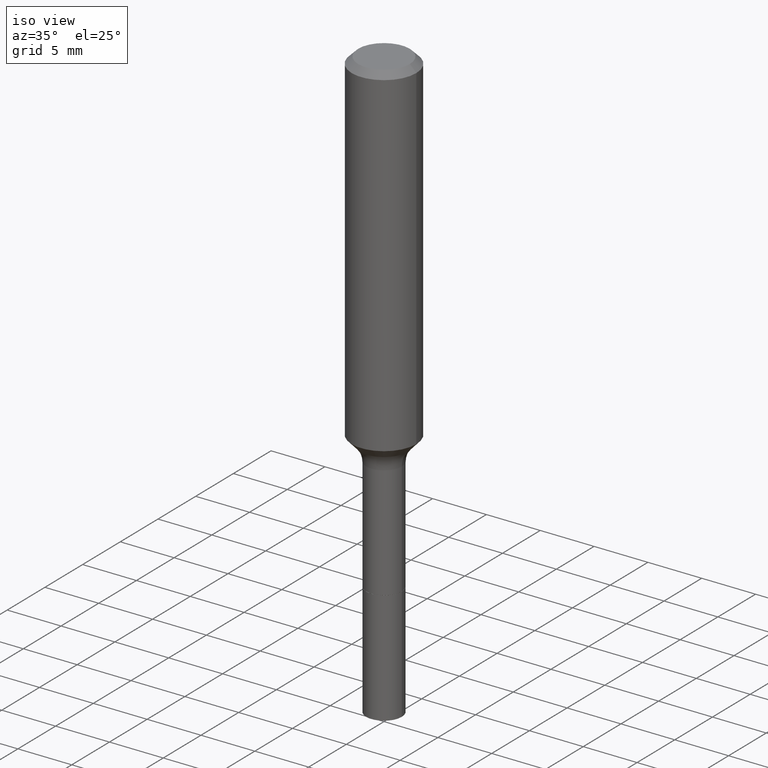
[diagram: clean part render]
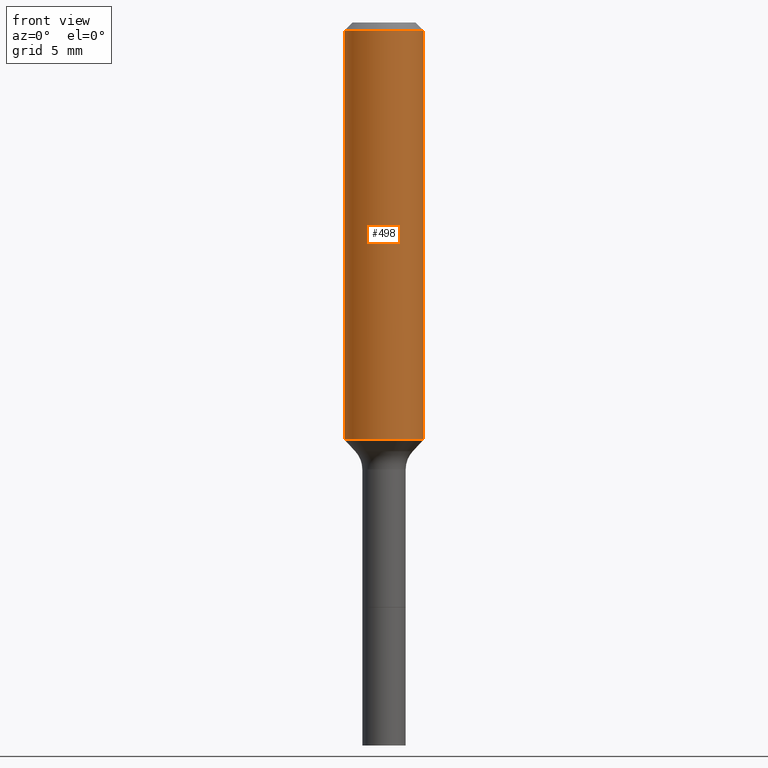
[diagram: tour spotlight — one face highlighted and labeled with its STEP entity id]
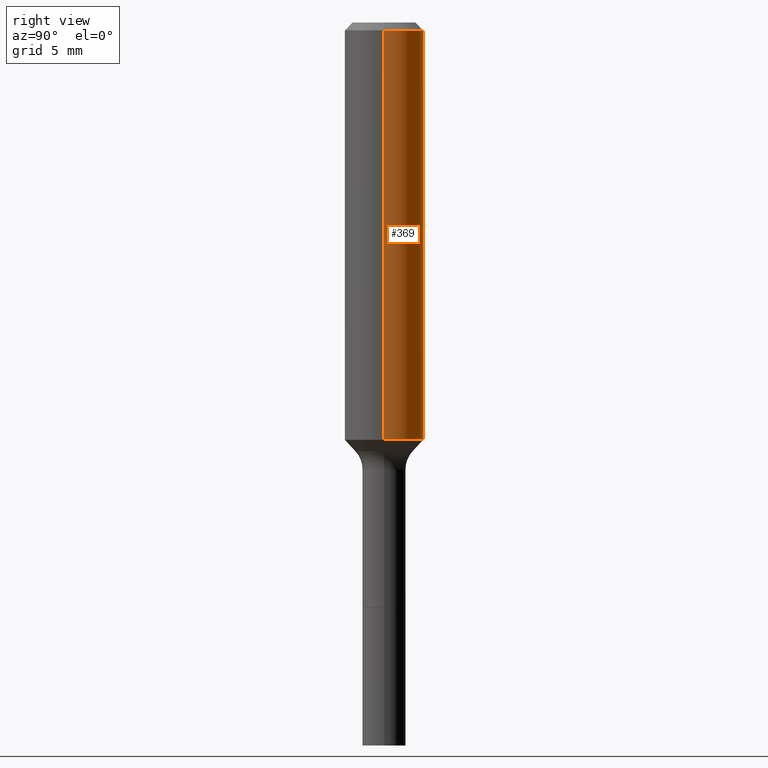
[diagram: tour spotlight — one face highlighted and labeled with its STEP entity id]
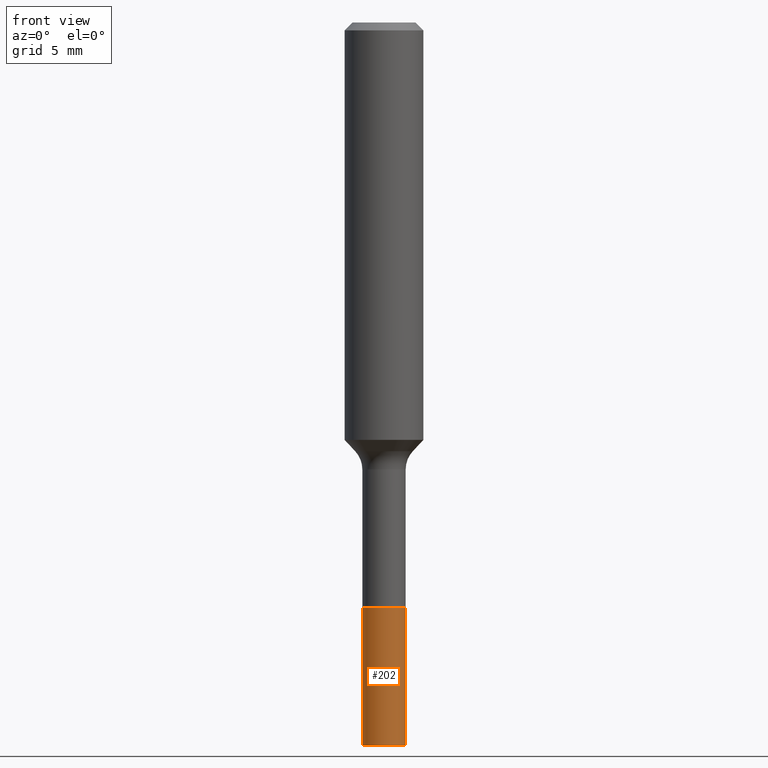
[diagram: tour spotlight — one face highlighted and labeled with its STEP entity id]
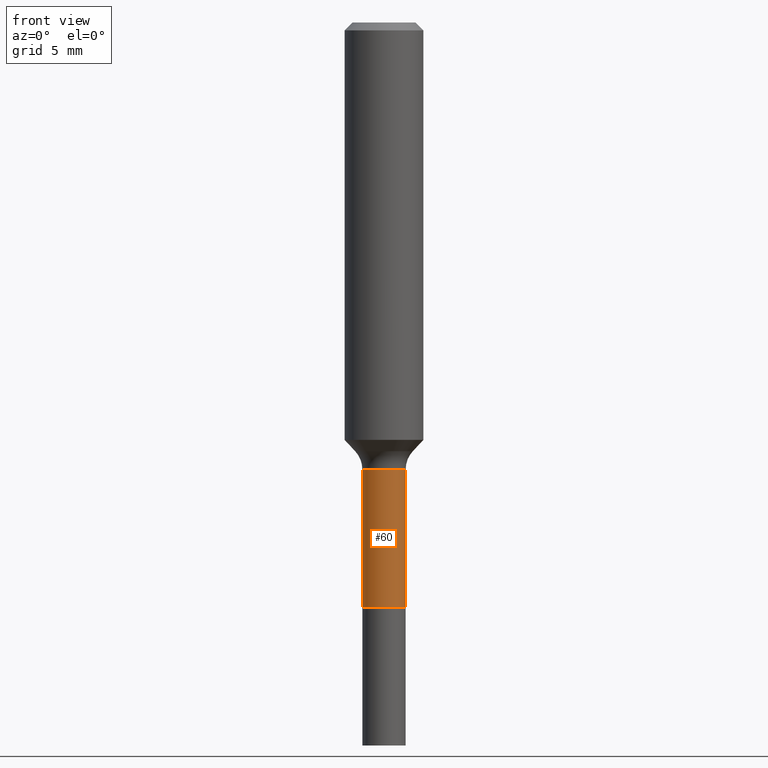
[diagram: tour spotlight — one face highlighted and labeled with its STEP entity id]
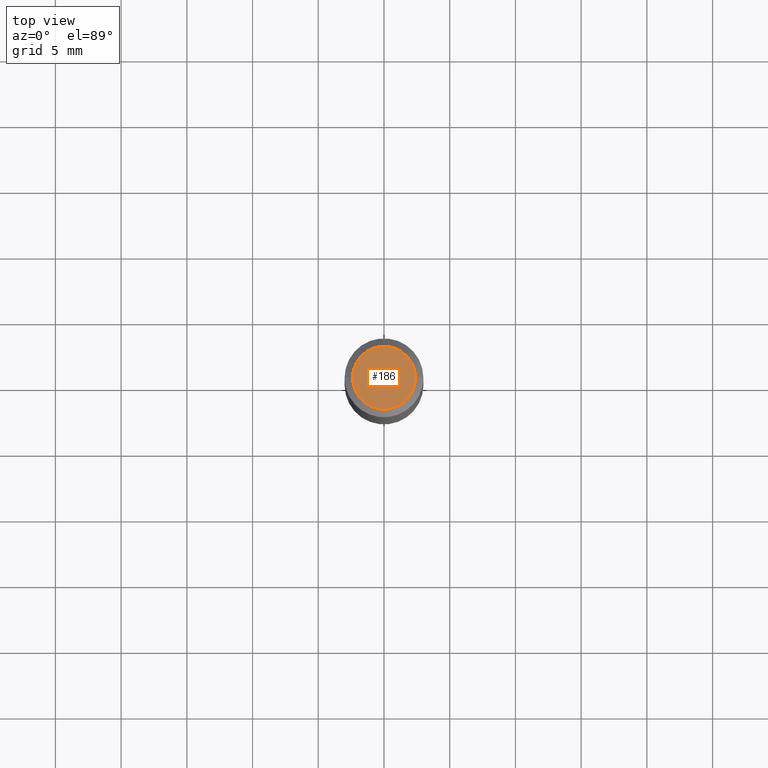
[diagram: tour spotlight — one face highlighted and labeled with its STEP entity id]
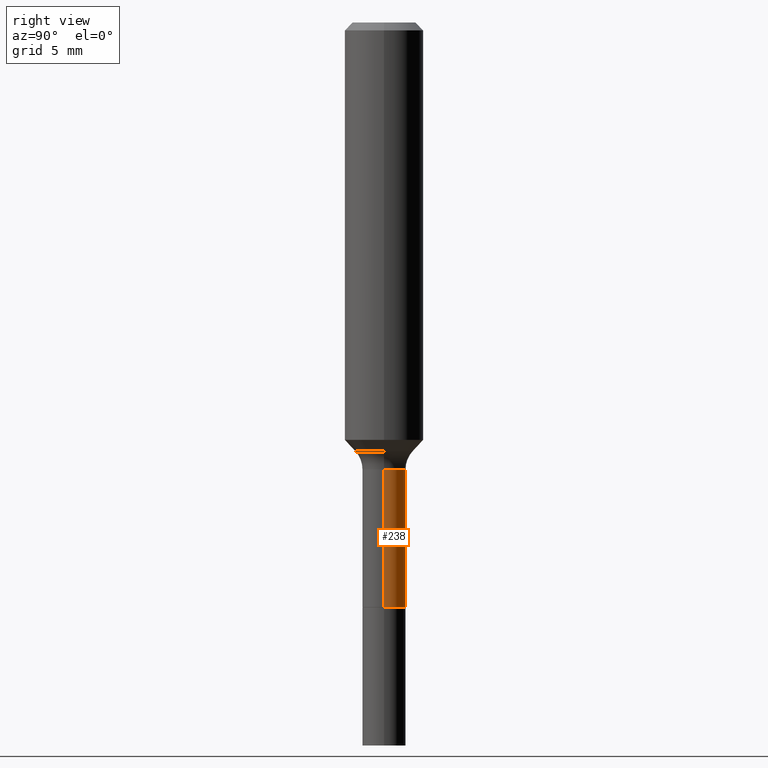
[diagram: tour spotlight — one face highlighted and labeled with its STEP entity id]
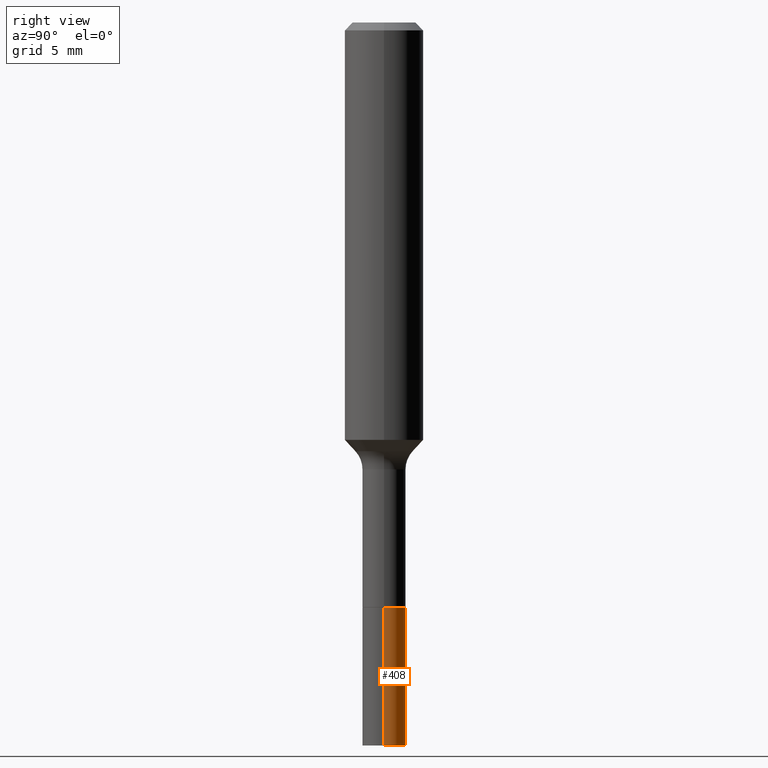
[diagram: tour spotlight — one face highlighted and labeled with its STEP entity id]
A machine part: a face-by-face anatomy tour. The part has 18 B-rep faces; the first image is the clean iso view, then the 7 largest visible faces are spotlighted one at a time (largest first), each with its STEP entity span.

Face 1 — front view, entity #498. In plain terms, the highlighted cylindrical surface (partial cylindrical patch) has radius 2.9997 mm, axis along (-0, 0, 1).
Definition (entity closure, byte-faithful):
#2 = CIRCLE ( 'NONE', #509, 0.1180999999999999966 ) ;
#3 = DIRECTION ( 'NONE',  ( -2.445468806185136877E-29, 3.491481338843145188E-15, 1.000000000000000000 ) ) ;
#24 = ORIENTED_EDGE ( 'NONE', *, *, #147, .F. ) ;
#59 = ORIENTED_EDGE ( 'NONE', *, *, #286, .F. ) ;
#69 = DIRECTION ( 'NONE',  ( 1.000000000000000000, -6.982962677686264344E-15, 0.000000000000000000 ) ) ;
#77 = DIRECTION ( 'NONE',  ( -2.445468806185136597E-29, 3.491481338843145583E-15, 1.000000000000000000 ) ) ;
#117 = CARTESIAN_POINT ( 'NONE',  ( 5.776197320209328408E-31, -8.246878922347560526E-17, -0.02362000000000014435 ) ) ;
#136 = EDGE_CURVE ( 'NONE', #219, #164, #465, .T. ) ;
#146 = DIRECTION ( 'NONE',  ( 1.000000000000000000, -6.982962677686266711E-15, 4.876176775795936353E-29 ) ) ;
#147 = EDGE_CURVE ( 'NONE', #387, #411, #2, .T. ) ;
#164 = VERTEX_POINT ( 'NONE', #333 ) ;
#185 = EDGE_LOOP ( 'NONE', ( #59, #188, #463, #24 ) ) ;
#188 = ORIENTED_EDGE ( 'NONE', *, *, #136, .T. ) ;
#191 = VECTOR ( 'NONE', #272, 39.37007874015748143 ) ;
#195 = CARTESIAN_POINT ( 'NONE',  ( 3.056568876978149213E-29, -4.363970281635246080E-15, -1.249890765012992233 ) ) ;
#196 = CARTESIAN_POINT ( 'NONE',  ( -0.1181000000000000660, 8.391509709326787887E-16, -5.809262341591047287E-30 ) ) ;
#218 = CARTESIAN_POINT ( 'NONE',  ( 0.1180999999999999966, -9.071566814582237199E-16, -0.02362000000000014435 ) ) ;
#219 = VERTEX_POINT ( 'NONE', #343 ) ;
#223 = DIRECTION ( 'NONE',  ( 1.000000000000000000, -6.982962677686266711E-15, 0.000000000000000000 ) ) ;
#248 = AXIS2_PLACEMENT_3D ( 'NONE', #320, #334, #146 ) ;
#257 = FACE_OUTER_BOUND ( 'NONE', #185, .T. ) ;
#272 = DIRECTION ( 'NONE',  ( -2.445468806185136877E-29, 3.491481338843145188E-15, 1.000000000000000000 ) ) ;
#274 = LINE ( 'NONE', #196, #191 ) ;
#280 = LINE ( 'NONE', #346, #487 ) ;
#286 = EDGE_CURVE ( 'NONE', #219, #387, #274, .T. ) ;
#301 = EDGE_CURVE ( 'NONE', #164, #411, #280, .T. ) ;
#320 = CARTESIAN_POINT ( 'NONE',  ( 0.000000000000000000, 0.000000000000000000, 0.000000000000000000 ) ) ;
#333 = CARTESIAN_POINT ( 'NONE',  ( 0.1181000000000001493, -5.188658173869994343E-15, -1.249890765012992233 ) ) ;
#334 = DIRECTION ( 'NONE',  ( -2.445468806185136597E-29, 3.491481338843145583E-15, 1.000000000000000000 ) ) ;
#343 = CARTESIAN_POINT ( 'NONE',  ( -0.1181000000000001493, -3.524819310702566700E-15, -1.249890765012992233 ) ) ;
#346 = CARTESIAN_POINT ( 'NONE',  ( 0.1181000000000000660, -8.246878922347485584E-16, 5.758764772215003944E-30 ) ) ;
#358 = AXIS2_PLACEMENT_3D ( 'NONE', #195, #429, #69 ) ;
#379 = CYLINDRICAL_SURFACE ( 'NONE', #248, 0.1181000000000000660 ) ;
#387 = VERTEX_POINT ( 'NONE', #478 ) ;
#411 = VERTEX_POINT ( 'NONE', #218 ) ;
#429 = DIRECTION ( 'NONE',  ( -2.445468806185136597E-29, 3.491481338843145583E-15, 1.000000000000000000 ) ) ;
#463 = ORIENTED_EDGE ( 'NONE', *, *, #301, .T. ) ;
#465 = CIRCLE ( 'NONE', #358, 0.1181000000000001493 ) ;
#478 = CARTESIAN_POINT ( 'NONE',  ( -0.1180999999999999966, -1.384068564496681388E-15, -0.02362000000000014435 ) ) ;
#487 = VECTOR ( 'NONE', #3, 39.37007874015748143 ) ;
#498 = ADVANCED_FACE ( 'NONE', ( #257 ), #379, .T. ) ;
#509 = AXIS2_PLACEMENT_3D ( 'NONE', #117, #77, #223 ) ;

Face 2 — right view, entity #369. In plain terms, the highlighted cylindrical surface (partial cylindrical patch) has radius 2.9997 mm, axis along (-0, 0, 1).
Definition (entity closure, byte-faithful):
#3 = DIRECTION ( 'NONE',  ( -2.445468806185136877E-29, 3.491481338843145188E-15, 1.000000000000000000 ) ) ;
#9 = CARTESIAN_POINT ( 'NONE',  ( 5.776197320209328408E-31, -8.246878922347560526E-17, -0.02362000000000014435 ) ) ;
#11 = AXIS2_PLACEMENT_3D ( 'NONE', #407, #230, #107 ) ;
#78 = EDGE_CURVE ( 'NONE', #411, #387, #231, .T. ) ;
#106 = ORIENTED_EDGE ( 'NONE', *, *, #116, .T. ) ;
#107 = DIRECTION ( 'NONE',  ( 1.000000000000000000, -6.982962677686264344E-15, 0.000000000000000000 ) ) ;
#116 = EDGE_CURVE ( 'NONE', #164, #219, #284, .T. ) ;
#123 = AXIS2_PLACEMENT_3D ( 'NONE', #9, #394, #169 ) ;
#135 = FACE_OUTER_BOUND ( 'NONE', #517, .T. ) ;
#164 = VERTEX_POINT ( 'NONE', #333 ) ;
#169 = DIRECTION ( 'NONE',  ( 1.000000000000000000, -6.982962677686266711E-15, 0.000000000000000000 ) ) ;
#191 = VECTOR ( 'NONE', #272, 39.37007874015748143 ) ;
#196 = CARTESIAN_POINT ( 'NONE',  ( -0.1181000000000000660, 8.391509709326787887E-16, -5.809262341591047287E-30 ) ) ;
#197 = ORIENTED_EDGE ( 'NONE', *, *, #286, .T. ) ;
#218 = CARTESIAN_POINT ( 'NONE',  ( 0.1180999999999999966, -9.071566814582237199E-16, -0.02362000000000014435 ) ) ;
#219 = VERTEX_POINT ( 'NONE', #343 ) ;
#230 = DIRECTION ( 'NONE',  ( -2.445468806185136597E-29, 3.491481338843145583E-15, 1.000000000000000000 ) ) ;
#231 = CIRCLE ( 'NONE', #123, 0.1180999999999999966 ) ;
#240 = ORIENTED_EDGE ( 'NONE', *, *, #78, .F. ) ;
#243 = CYLINDRICAL_SURFACE ( 'NONE', #510, 0.1181000000000000660 ) ;
#272 = DIRECTION ( 'NONE',  ( -2.445468806185136877E-29, 3.491481338843145188E-15, 1.000000000000000000 ) ) ;
#274 = LINE ( 'NONE', #196, #191 ) ;
#280 = LINE ( 'NONE', #346, #487 ) ;
#283 = DIRECTION ( 'NONE',  ( 1.000000000000000000, -6.982962677686266711E-15, 4.876176775795936353E-29 ) ) ;
#284 = CIRCLE ( 'NONE', #11, 0.1181000000000001493 ) ;
#286 = EDGE_CURVE ( 'NONE', #219, #387, #274, .T. ) ;
#301 = EDGE_CURVE ( 'NONE', #164, #411, #280, .T. ) ;
#318 = CARTESIAN_POINT ( 'NONE',  ( 0.000000000000000000, 0.000000000000000000, 0.000000000000000000 ) ) ;
#333 = CARTESIAN_POINT ( 'NONE',  ( 0.1181000000000001493, -5.188658173869994343E-15, -1.249890765012992233 ) ) ;
#343 = CARTESIAN_POINT ( 'NONE',  ( -0.1181000000000001493, -3.524819310702566700E-15, -1.249890765012992233 ) ) ;
#346 = CARTESIAN_POINT ( 'NONE',  ( 0.1181000000000000660, -8.246878922347485584E-16, 5.758764772215003944E-30 ) ) ;
#369 = ADVANCED_FACE ( 'NONE', ( #135 ), #243, .T. ) ;
#387 = VERTEX_POINT ( 'NONE', #478 ) ;
#394 = DIRECTION ( 'NONE',  ( -2.445468806185136597E-29, 3.491481338843145583E-15, 1.000000000000000000 ) ) ;
#407 = CARTESIAN_POINT ( 'NONE',  ( 3.056568876978149213E-29, -4.363970281635246080E-15, -1.249890765012992233 ) ) ;
#411 = VERTEX_POINT ( 'NONE', #218 ) ;
#467 = ORIENTED_EDGE ( 'NONE', *, *, #301, .F. ) ;
#478 = CARTESIAN_POINT ( 'NONE',  ( -0.1180999999999999966, -1.384068564496681388E-15, -0.02362000000000014435 ) ) ;
#487 = VECTOR ( 'NONE', #3, 39.37007874015748143 ) ;
#490 = DIRECTION ( 'NONE',  ( -2.445468806185136597E-29, 3.491481338843145583E-15, 1.000000000000000000 ) ) ;
#510 = AXIS2_PLACEMENT_3D ( 'NONE', #318, #490, #283 ) ;
#517 = EDGE_LOOP ( 'NONE', ( #106, #197, #240, #467 ) ) ;

Face 3 — front view, entity #202. In plain terms, the highlighted cylindrical surface (edge-blend (fillet) strip) has radius 1.6497 mm, axis along (-0, 0, 1).
Definition (entity closure, byte-faithful):
#8 = DIRECTION ( 'NONE',  ( 1.000000000000000000, -6.982962677686268288E-15, 0.000000000000000000 ) ) ;
#47 = CARTESIAN_POINT ( 'NONE',  ( -0.06495000000000013263, -6.376219547114229449E-15, -2.165399999999999991 ) ) ;
#50 = EDGE_CURVE ( 'NONE', #325, #131, #134, .T. ) ;
#52 = DIRECTION ( 'NONE',  ( -2.445468806185136597E-29, 3.491481338843145583E-15, 1.000000000000000000 ) ) ;
#84 = CARTESIAN_POINT ( 'NONE',  ( 0.06495000000000006324, -6.568523842765608074E-15, -1.751399999999999846 ) ) ;
#87 = AXIS2_PLACEMENT_3D ( 'NONE', #111, #119, #262 ) ;
#95 = DIRECTION ( 'NONE',  ( -2.445468806185136597E-29, 3.491481338843145583E-15, 1.000000000000000000 ) ) ;
#111 = CARTESIAN_POINT ( 'NONE',  ( 4.282994067152647543E-29, -6.114980416849884881E-15, -1.751399999999999846 ) ) ;
#119 = DIRECTION ( 'NONE',  ( -2.445468806185136597E-29, 3.491481338843145583E-15, 1.000000000000000000 ) ) ;
#124 = VECTOR ( 'NONE', #393, 39.37007874015748143 ) ;
#129 = CARTESIAN_POINT ( 'NONE',  ( 4.282994067152647543E-29, -6.114980416849884881E-15, -1.751399999999999846 ) ) ;
#131 = VERTEX_POINT ( 'NONE', #156 ) ;
#133 = CARTESIAN_POINT ( 'NONE',  ( 0.06494999999999999385, -6.568523842765608074E-15, -1.751399999999999846 ) ) ;
#134 = LINE ( 'NONE', #392, #175 ) ;
#138 = AXIS2_PLACEMENT_3D ( 'NONE', #129, #52, #8 ) ;
#148 = EDGE_LOOP ( 'NONE', ( #401, #291, #297, #258 ) ) ;
#151 = CIRCLE ( 'NONE', #376, 0.06495000000000013263 ) ;
#156 = CARTESIAN_POINT ( 'NONE',  ( -0.06494999999999999385, -6.376219547114230237E-15, -1.751399999999999846 ) ) ;
#175 = VECTOR ( 'NONE', #205, 39.37007874015748143 ) ;
#187 = CARTESIAN_POINT ( 'NONE',  ( 5.295418152913294345E-29, -7.560453691130947423E-15, -2.165399999999999991 ) ) ;
#202 = ADVANCED_FACE ( 'NONE', ( #473 ), #337, .T. ) ;
#205 = DIRECTION ( 'NONE',  ( -2.445468806185136877E-29, 3.491481338843145188E-15, 1.000000000000000000 ) ) ;
#258 = ORIENTED_EDGE ( 'NONE', *, *, #338, .F. ) ;
#262 = DIRECTION ( 'NONE',  ( 1.000000000000000000, -6.982962677686261189E-15, 0.000000000000000000 ) ) ;
#265 = VERTEX_POINT ( 'NONE', #349 ) ;
#291 = ORIENTED_EDGE ( 'NONE', *, *, #472, .T. ) ;
#297 = ORIENTED_EDGE ( 'NONE', *, *, #390, .T. ) ;
#300 = VERTEX_POINT ( 'NONE', #133 ) ;
#316 = CIRCLE ( 'NONE', #138, 0.06494999999999999385 ) ;
#325 = VERTEX_POINT ( 'NONE', #47 ) ;
#337 = CYLINDRICAL_SURFACE ( 'NONE', #87, 0.06495000000000006324 ) ;
#338 = EDGE_CURVE ( 'NONE', #131, #300, #316, .T. ) ;
#349 = CARTESIAN_POINT ( 'NONE',  ( 0.06495000000000013263, -8.013997117046670616E-15, -2.165399999999999991 ) ) ;
#365 = DIRECTION ( 'NONE',  ( 1.000000000000000000, -6.982962677686269077E-15, 0.000000000000000000 ) ) ;
#376 = AXIS2_PLACEMENT_3D ( 'NONE', #187, #95, #365 ) ;
#390 = EDGE_CURVE ( 'NONE', #265, #300, #436, .T. ) ;
#392 = CARTESIAN_POINT ( 'NONE',  ( -0.06495000000000006324, -5.653482909973699361E-15, -1.751399999999999846 ) ) ;
#393 = DIRECTION ( 'NONE',  ( -2.445468806185136877E-29, 3.491481338843145188E-15, 1.000000000000000000 ) ) ;
#401 = ORIENTED_EDGE ( 'NONE', *, *, #50, .F. ) ;
#436 = LINE ( 'NONE', #84, #124 ) ;
#472 = EDGE_CURVE ( 'NONE', #325, #265, #151, .T. ) ;
#473 = FACE_OUTER_BOUND ( 'NONE', #148, .T. ) ;

Face 4 — front view, entity #60. In plain terms, the highlighted cylindrical surface (edge-blend (fillet) strip) has radius 1.6497 mm, axis along (-0, 0, 1).
Definition (entity closure, byte-faithful):
#30 = EDGE_LOOP ( 'NONE', ( #375, #471, #293, #268 ) ) ;
#36 = VECTOR ( 'NONE', #385, 39.37007874015748143 ) ;
#58 = CARTESIAN_POINT ( 'NONE',  ( -0.06494999999999999385, -4.931619143167880420E-15, -1.750899999999999901 ) ) ;
#60 = ADVANCED_FACE ( 'NONE', ( #275 ), #404, .T. ) ;
#80 = CIRCLE ( 'NONE', #502, 0.06494999999999999385 ) ;
#82 = DIRECTION ( 'NONE',  ( -2.445468806185136597E-29, 3.491481338843145583E-15, 1.000000000000000000 ) ) ;
#98 = DIRECTION ( 'NONE',  ( 1.000000000000000000, -6.982962677686268288E-15, 0.000000000000000000 ) ) ;
#113 = AXIS2_PLACEMENT_3D ( 'NONE', #360, #82, #356 ) ;
#137 = CARTESIAN_POINT ( 'NONE',  ( 4.281771332749555302E-29, -6.113234676180463377E-15, -1.750899999999999901 ) ) ;
#144 = VERTEX_POINT ( 'NONE', #470 ) ;
#149 = CARTESIAN_POINT ( 'NONE',  ( 0.06494999999999996609, -4.535434259157227002E-16, 3.167076815879458313E-30 ) ) ;
#167 = EDGE_CURVE ( 'NONE', #339, #144, #207, .T. ) ;
#189 = LINE ( 'NONE', #149, #36 ) ;
#206 = CARTESIAN_POINT ( 'NONE',  ( -0.06494999999999993834, -4.931619143167880420E-15, -1.338399999999999812 ) ) ;
#207 = CIRCLE ( 'NONE', #239, 0.06494999999999993834 ) ;
#210 = CARTESIAN_POINT ( 'NONE',  ( 0.06494999999999999385, -6.566778102096186571E-15, -1.750899999999999901 ) ) ;
#211 = EDGE_CURVE ( 'NONE', #506, #144, #189, .T. ) ;
#239 = AXIS2_PLACEMENT_3D ( 'NONE', #344, #434, #304 ) ;
#259 = LINE ( 'NONE', #418, #452 ) ;
#268 = ORIENTED_EDGE ( 'NONE', *, *, #167, .F. ) ;
#275 = FACE_OUTER_BOUND ( 'NONE', #30, .T. ) ;
#293 = ORIENTED_EDGE ( 'NONE', *, *, #211, .T. ) ;
#304 = DIRECTION ( 'NONE',  ( 1.000000000000000000, -6.982962677686274599E-15, 0.000000000000000000 ) ) ;
#339 = VERTEX_POINT ( 'NONE', #206 ) ;
#344 = CARTESIAN_POINT ( 'NONE',  ( 3.273015450198186344E-29, -4.672998623907665346E-15, -1.338399999999999812 ) ) ;
#356 = DIRECTION ( 'NONE',  ( 1.000000000000000000, -6.982962677686265133E-15, 4.876176775795935232E-29 ) ) ;
#360 = CARTESIAN_POINT ( 'NONE',  ( 0.000000000000000000, 0.000000000000000000, 0.000000000000000000 ) ) ;
#375 = ORIENTED_EDGE ( 'NONE', *, *, #442, .F. ) ;
#385 = DIRECTION ( 'NONE',  ( -2.445468806185136877E-29, 3.491481338843145188E-15, 1.000000000000000000 ) ) ;
#400 = EDGE_CURVE ( 'NONE', #444, #506, #80, .T. ) ;
#404 = CYLINDRICAL_SURFACE ( 'NONE', #113, 0.06494999999999996609 ) ;
#410 = DIRECTION ( 'NONE',  ( -2.445468806185136877E-29, 3.491481338843145188E-15, 1.000000000000000000 ) ) ;
#418 = CARTESIAN_POINT ( 'NONE',  ( -0.06494999999999996609, 4.614975068761848298E-16, -3.194848341120559503E-30 ) ) ;
#420 = DIRECTION ( 'NONE',  ( -2.445468806185136597E-29, 3.491481338843145583E-15, 1.000000000000000000 ) ) ;
#434 = DIRECTION ( 'NONE',  ( -2.445468806185136597E-29, 3.491481338843145583E-15, 1.000000000000000000 ) ) ;
#442 = EDGE_CURVE ( 'NONE', #444, #339, #259, .T. ) ;
#444 = VERTEX_POINT ( 'NONE', #58 ) ;
#452 = VECTOR ( 'NONE', #410, 39.37007874015748143 ) ;
#470 = CARTESIAN_POINT ( 'NONE',  ( 0.06494999999999993834, -5.126542049823388540E-15, -1.338399999999999812 ) ) ;
#471 = ORIENTED_EDGE ( 'NONE', *, *, #400, .T. ) ;
#502 = AXIS2_PLACEMENT_3D ( 'NONE', #137, #420, #98 ) ;
#506 = VERTEX_POINT ( 'NONE', #210 ) ;

Face 5 — top view, entity #186. In plain terms, the highlighted planar face has unit normal (0, -0, -1).
Definition (entity closure, byte-faithful):
#35 = FACE_OUTER_BOUND ( 'NONE', #81, .T. ) ;
#41 = DIRECTION ( 'NONE',  ( -1.000000000000000000, 6.982962677686265922E-15, -4.876176775795935793E-29 ) ) ;
#53 = ORIENTED_EDGE ( 'NONE', *, *, #220, .T. ) ;
#62 = CIRCLE ( 'NONE', #451, 0.09447999999999998066 ) ;
#68 = CARTESIAN_POINT ( 'NONE',  ( 0.09447999999999998066, -7.704367267948738690E-16, -3.085620075131172158E-17 ) ) ;
#81 = EDGE_LOOP ( 'NONE', ( #53, #125 ) ) ;
#121 = PLANE ( 'NONE',  #255 ) ;
#125 = ORIENTED_EDGE ( 'NONE', *, *, #266, .T. ) ;
#168 = CARTESIAN_POINT ( 'NONE',  ( 7.545787641473140628E-46, -1.077338491108201769E-31, -3.085620075131671975E-17 ) ) ;
#186 = ADVANCED_FACE ( 'NONE', ( #35 ), #121, .F. ) ;
#220 = EDGE_CURVE ( 'NONE', #474, #227, #366, .T. ) ;
#224 = CARTESIAN_POINT ( 'NONE',  ( -0.09447999999999998066, 7.009847083995354710E-16, -3.085620075132147757E-17 ) ) ;
#227 = VERTEX_POINT ( 'NONE', #68 ) ;
#255 = AXIS2_PLACEMENT_3D ( 'NONE', #295, #514, #41 ) ;
#266 = EDGE_CURVE ( 'NONE', #227, #474, #62, .T. ) ;
#269 = AXIS2_PLACEMENT_3D ( 'NONE', #469, #329, #516 ) ;
#295 = CARTESIAN_POINT ( 'NONE',  ( 3.772893820736570314E-46, -5.386692455541008845E-32, -1.542810037565835988E-17 ) ) ;
#311 = DIRECTION ( 'NONE',  ( -2.445468806185136597E-29, 3.491481338843145583E-15, 1.000000000000000000 ) ) ;
#329 = DIRECTION ( 'NONE',  ( -2.445468806185136597E-29, 3.491481338843145583E-15, 1.000000000000000000 ) ) ;
#366 = CIRCLE ( 'NONE', #269, 0.09447999999999998066 ) ;
#451 = AXIS2_PLACEMENT_3D ( 'NONE', #168, #311, #485 ) ;
#469 = CARTESIAN_POINT ( 'NONE',  ( 7.545787641473140628E-46, -1.077338491108201769E-31, -3.085620075131671975E-17 ) ) ;
#474 = VERTEX_POINT ( 'NONE', #224 ) ;
#485 = DIRECTION ( 'NONE',  ( 1.000000000000000000, -6.982962677686267499E-15, 4.875432709231658792E-29 ) ) ;
#514 = DIRECTION ( 'NONE',  ( 2.438088387897960049E-29, -3.491481338843145188E-15, -1.000000000000000000 ) ) ;
#516 = DIRECTION ( 'NONE',  ( 1.000000000000000000, -6.982962677686267499E-15, 4.875432709231658792E-29 ) ) ;

Face 6 — right view, entity #238. In plain terms, the highlighted cylindrical surface (edge-blend (fillet) strip) has radius 1.6497 mm, axis along (-0, 0, 1).
Definition (entity closure, byte-faithful):
#1 = ORIENTED_EDGE ( 'NONE', *, *, #211, .F. ) ;
#31 = CARTESIAN_POINT ( 'NONE',  ( 0.000000000000000000, 0.000000000000000000, 0.000000000000000000 ) ) ;
#36 = VECTOR ( 'NONE', #385, 39.37007874015748143 ) ;
#44 = EDGE_CURVE ( 'NONE', #144, #339, #374, .T. ) ;
#45 = ORIENTED_EDGE ( 'NONE', *, *, #442, .T. ) ;
#51 = DIRECTION ( 'NONE',  ( 1.000000000000000000, -6.982962677686274599E-15, 0.000000000000000000 ) ) ;
#58 = CARTESIAN_POINT ( 'NONE',  ( -0.06494999999999999385, -4.931619143167880420E-15, -1.750899999999999901 ) ) ;
#73 = ORIENTED_EDGE ( 'NONE', *, *, #44, .F. ) ;
#83 = EDGE_CURVE ( 'NONE', #506, #444, #458, .T. ) ;
#110 = DIRECTION ( 'NONE',  ( -2.445468806185136597E-29, 3.491481338843145583E-15, 1.000000000000000000 ) ) ;
#144 = VERTEX_POINT ( 'NONE', #470 ) ;
#149 = CARTESIAN_POINT ( 'NONE',  ( 0.06494999999999996609, -4.535434259157227002E-16, 3.167076815879458313E-30 ) ) ;
#166 = CARTESIAN_POINT ( 'NONE',  ( 3.273015450198186344E-29, -4.672998623907665346E-15, -1.338399999999999812 ) ) ;
#189 = LINE ( 'NONE', #149, #36 ) ;
#206 = CARTESIAN_POINT ( 'NONE',  ( -0.06494999999999993834, -4.931619143167880420E-15, -1.338399999999999812 ) ) ;
#210 = CARTESIAN_POINT ( 'NONE',  ( 0.06494999999999999385, -6.566778102096186571E-15, -1.750899999999999901 ) ) ;
#211 = EDGE_CURVE ( 'NONE', #506, #144, #189, .T. ) ;
#214 = AXIS2_PLACEMENT_3D ( 'NONE', #31, #110, #336 ) ;
#238 = ADVANCED_FACE ( 'NONE', ( #377 ), #340, .T. ) ;
#242 = DIRECTION ( 'NONE',  ( -2.445468806185136597E-29, 3.491481338843145583E-15, 1.000000000000000000 ) ) ;
#259 = LINE ( 'NONE', #418, #452 ) ;
#282 = DIRECTION ( 'NONE',  ( -2.445468806185136597E-29, 3.491481338843145583E-15, 1.000000000000000000 ) ) ;
#305 = CARTESIAN_POINT ( 'NONE',  ( 4.281771332749555302E-29, -6.113234676180463377E-15, -1.750899999999999901 ) ) ;
#317 = DIRECTION ( 'NONE',  ( 1.000000000000000000, -6.982962677686268288E-15, 0.000000000000000000 ) ) ;
#332 = EDGE_LOOP ( 'NONE', ( #422, #45, #73, #1 ) ) ;
#336 = DIRECTION ( 'NONE',  ( 1.000000000000000000, -6.982962677686265133E-15, 4.876176775795935232E-29 ) ) ;
#339 = VERTEX_POINT ( 'NONE', #206 ) ;
#340 = CYLINDRICAL_SURFACE ( 'NONE', #214, 0.06494999999999996609 ) ;
#374 = CIRCLE ( 'NONE', #397, 0.06494999999999993834 ) ;
#377 = FACE_OUTER_BOUND ( 'NONE', #332, .T. ) ;
#385 = DIRECTION ( 'NONE',  ( -2.445468806185136877E-29, 3.491481338843145188E-15, 1.000000000000000000 ) ) ;
#397 = AXIS2_PLACEMENT_3D ( 'NONE', #166, #242, #51 ) ;
#410 = DIRECTION ( 'NONE',  ( -2.445468806185136877E-29, 3.491481338843145188E-15, 1.000000000000000000 ) ) ;
#418 = CARTESIAN_POINT ( 'NONE',  ( -0.06494999999999996609, 4.614975068761848298E-16, -3.194848341120559503E-30 ) ) ;
#421 = AXIS2_PLACEMENT_3D ( 'NONE', #305, #282, #317 ) ;
#422 = ORIENTED_EDGE ( 'NONE', *, *, #83, .T. ) ;
#442 = EDGE_CURVE ( 'NONE', #444, #339, #259, .T. ) ;
#444 = VERTEX_POINT ( 'NONE', #58 ) ;
#452 = VECTOR ( 'NONE', #410, 39.37007874015748143 ) ;
#458 = CIRCLE ( 'NONE', #421, 0.06494999999999999385 ) ;
#470 = CARTESIAN_POINT ( 'NONE',  ( 0.06494999999999993834, -5.126542049823388540E-15, -1.338399999999999812 ) ) ;
#506 = VERTEX_POINT ( 'NONE', #210 ) ;

Face 7 — right view, entity #408. In plain terms, the highlighted cylindrical surface (edge-blend (fillet) strip) has radius 1.6497 mm, axis along (-0, 0, 1).
Definition (entity closure, byte-faithful):
#13 = DIRECTION ( 'NONE',  ( -2.445468806185136597E-29, 3.491481338843145583E-15, 1.000000000000000000 ) ) ;
#28 = DIRECTION ( 'NONE',  ( 1.000000000000000000, -6.982962677686268288E-15, 0.000000000000000000 ) ) ;
#32 = DIRECTION ( 'NONE',  ( 1.000000000000000000, -6.982962677686261189E-15, 0.000000000000000000 ) ) ;
#38 = ORIENTED_EDGE ( 'NONE', *, *, #50, .T. ) ;
#47 = CARTESIAN_POINT ( 'NONE',  ( -0.06495000000000013263, -6.376219547114229449E-15, -2.165399999999999991 ) ) ;
#50 = EDGE_CURVE ( 'NONE', #325, #131, #134, .T. ) ;
#56 = AXIS2_PLACEMENT_3D ( 'NONE', #176, #296, #28 ) ;
#84 = CARTESIAN_POINT ( 'NONE',  ( 0.06495000000000006324, -6.568523842765608074E-15, -1.751399999999999846 ) ) ;
#102 = AXIS2_PLACEMENT_3D ( 'NONE', #361, #13, #505 ) ;
#105 = CYLINDRICAL_SURFACE ( 'NONE', #367, 0.06495000000000006324 ) ;
#124 = VECTOR ( 'NONE', #393, 39.37007874015748143 ) ;
#131 = VERTEX_POINT ( 'NONE', #156 ) ;
#133 = CARTESIAN_POINT ( 'NONE',  ( 0.06494999999999999385, -6.568523842765608074E-15, -1.751399999999999846 ) ) ;
#134 = LINE ( 'NONE', #392, #175 ) ;
#156 = CARTESIAN_POINT ( 'NONE',  ( -0.06494999999999999385, -6.376219547114230237E-15, -1.751399999999999846 ) ) ;
#175 = VECTOR ( 'NONE', #205, 39.37007874015748143 ) ;
#176 = CARTESIAN_POINT ( 'NONE',  ( 4.282994067152647543E-29, -6.114980416849884881E-15, -1.751399999999999846 ) ) ;
#199 = CIRCLE ( 'NONE', #56, 0.06494999999999999385 ) ;
#205 = DIRECTION ( 'NONE',  ( -2.445468806185136877E-29, 3.491481338843145188E-15, 1.000000000000000000 ) ) ;
#232 = ORIENTED_EDGE ( 'NONE', *, *, #512, .T. ) ;
#252 = FACE_OUTER_BOUND ( 'NONE', #335, .T. ) ;
#265 = VERTEX_POINT ( 'NONE', #349 ) ;
#296 = DIRECTION ( 'NONE',  ( -2.445468806185136597E-29, 3.491481338843145583E-15, 1.000000000000000000 ) ) ;
#300 = VERTEX_POINT ( 'NONE', #133 ) ;
#325 = VERTEX_POINT ( 'NONE', #47 ) ;
#335 = EDGE_LOOP ( 'NONE', ( #232, #38, #477, #389 ) ) ;
#349 = CARTESIAN_POINT ( 'NONE',  ( 0.06495000000000013263, -8.013997117046670616E-15, -2.165399999999999991 ) ) ;
#361 = CARTESIAN_POINT ( 'NONE',  ( 5.295418152913294345E-29, -7.560453691130947423E-15, -2.165399999999999991 ) ) ;
#362 = CARTESIAN_POINT ( 'NONE',  ( 4.282994067152647543E-29, -6.114980416849884881E-15, -1.751399999999999846 ) ) ;
#367 = AXIS2_PLACEMENT_3D ( 'NONE', #362, #460, #32 ) ;
#389 = ORIENTED_EDGE ( 'NONE', *, *, #390, .F. ) ;
#390 = EDGE_CURVE ( 'NONE', #265, #300, #436, .T. ) ;
#392 = CARTESIAN_POINT ( 'NONE',  ( -0.06495000000000006324, -5.653482909973699361E-15, -1.751399999999999846 ) ) ;
#393 = DIRECTION ( 'NONE',  ( -2.445468806185136877E-29, 3.491481338843145188E-15, 1.000000000000000000 ) ) ;
#408 = ADVANCED_FACE ( 'NONE', ( #252 ), #105, .T. ) ;
#430 = EDGE_CURVE ( 'NONE', #300, #131, #199, .T. ) ;
#436 = LINE ( 'NONE', #84, #124 ) ;
#443 = CIRCLE ( 'NONE', #102, 0.06495000000000013263 ) ;
#460 = DIRECTION ( 'NONE',  ( -2.445468806185136597E-29, 3.491481338843145583E-15, 1.000000000000000000 ) ) ;
#477 = ORIENTED_EDGE ( 'NONE', *, *, #430, .F. ) ;
#505 = DIRECTION ( 'NONE',  ( 1.000000000000000000, -6.982962677686269077E-15, 0.000000000000000000 ) ) ;
#512 = EDGE_CURVE ( 'NONE', #265, #325, #443, .T. ) ;